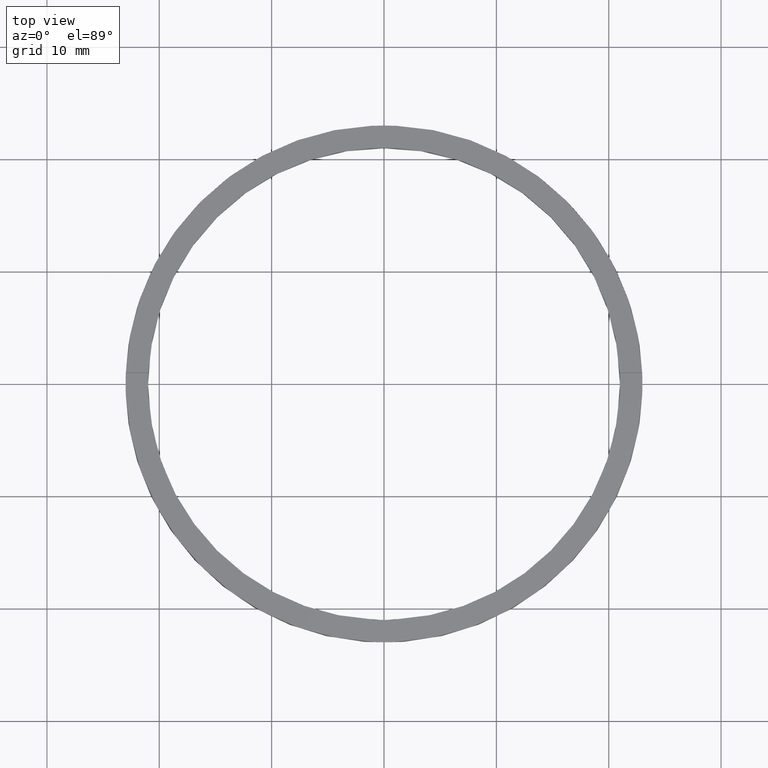
[diagram: clean part render]
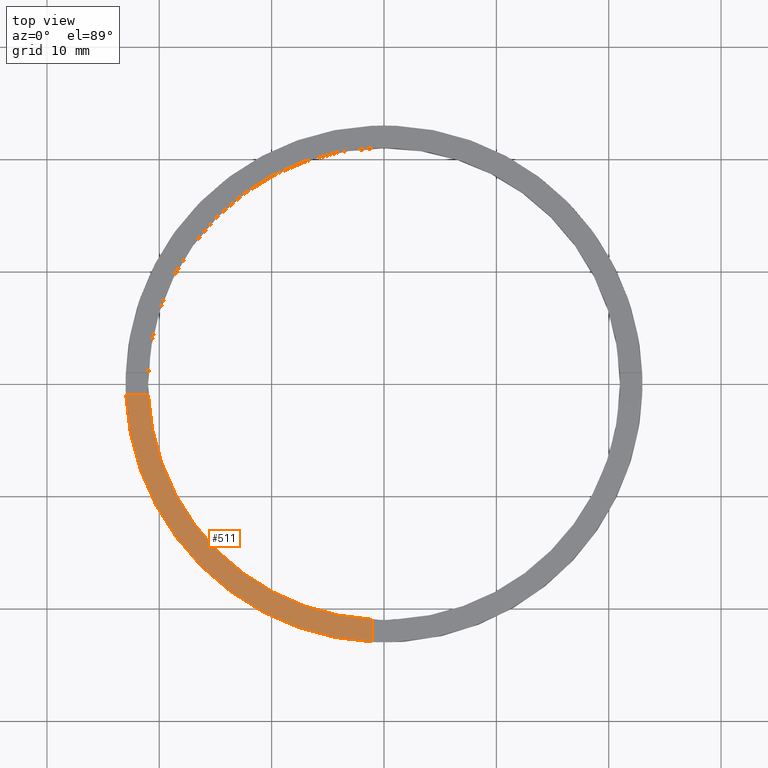
[diagram: same view with one face highlighted and labeled with its STEP entity id]
A machine part, top view. The second image highlights one B-rep face of the part: STEP entity #511.
In plain terms, the highlighted planar face has unit normal (0, 0, 1).
Its self-contained STEP definition (entity closure, byte-faithful):
#13 = VERTEX_POINT ( 'NONE', #663 ) ;
#17 = CARTESIAN_POINT ( 'NONE',  ( 0.000000000000000000, 0.000000000000000000, 2.500000000000000000 ) ) ;
#42 = VERTEX_POINT ( 'NONE', #181 ) ;
#46 = EDGE_CURVE ( 'NONE', #459, #42, #381, .T. ) ;
#57 = CARTESIAN_POINT ( 'NONE',  ( -1.000000000000161204, -20.97617696340302373, 2.500000000000000000 ) ) ;
#170 = DIRECTION ( 'NONE',  ( 1.000000000000000000, 1.734723475976807341E-16, -0.000000000000000000 ) ) ;
#181 = CARTESIAN_POINT ( 'NONE',  ( -20.97617696340303084, -1.000000000000025091, 2.500000000000000000 ) ) ;
#184 = CARTESIAN_POINT ( 'NONE',  ( 0.000000000000000000, 0.000000000000000000, 2.500000000000000000 ) ) ;
#190 = CIRCLE ( 'NONE', #610, 23.00000000000000000 ) ;
#195 = EDGE_CURVE ( 'NONE', #540, #13, #634, .T. ) ;
#197 = ORIENTED_EDGE ( 'NONE', *, *, #195, .F. ) ;
#234 = PLANE ( 'NONE',  #414 ) ;
#287 = CARTESIAN_POINT ( 'NONE',  ( 0.000000000000000000, 0.000000000000000000, 2.500000000000000000 ) ) ;
#305 = CARTESIAN_POINT ( 'NONE',  ( -13.00000000000018474, -1.000000000000023759, 2.500000000000000000 ) ) ;
#342 = DIRECTION ( 'NONE',  ( 1.517883041479706208E-16, -1.000000000000000000, 0.000000000000000000 ) ) ;
#370 = ORIENTED_EDGE ( 'NONE', *, *, #620, .F. ) ;
#376 = ORIENTED_EDGE ( 'NONE', *, *, #46, .F. ) ;
#381 = LINE ( 'NONE', #305, #385 ) ;
#385 = VECTOR ( 'NONE', #170, 1000.000000000000000 ) ;
#414 = AXIS2_PLACEMENT_3D ( 'NONE', #287, #543, #498 ) ;
#453 = DIRECTION ( 'NONE',  ( 0.000000000000000000, 0.000000000000000000, 1.000000000000000000 ) ) ;
#459 = VERTEX_POINT ( 'NONE', #723 ) ;
#498 = DIRECTION ( 'NONE',  ( 1.000000000000000000, 0.000000000000000000, -0.000000000000000000 ) ) ;
#511 = ADVANCED_FACE ( 'NONE', ( #697 ), #234, .T. ) ;
#540 = VERTEX_POINT ( 'NONE', #57 ) ;
#543 = DIRECTION ( 'NONE',  ( 0.000000000000000000, 0.000000000000000000, 1.000000000000000000 ) ) ;
#552 = CARTESIAN_POINT ( 'NONE',  ( -1.000000000000162537, -13.00000000000017941, 2.500000000000000000 ) ) ;
#557 = DIRECTION ( 'NONE',  ( 1.000000000000000000, 0.000000000000000000, 0.000000000000000000 ) ) ;
#567 = EDGE_LOOP ( 'NONE', ( #197, #370, #376, #652 ) ) ;
#610 = AXIS2_PLACEMENT_3D ( 'NONE', #17, #453, #619 ) ;
#619 = DIRECTION ( 'NONE',  ( 1.000000000000000000, 0.000000000000000000, 0.000000000000000000 ) ) ;
#620 = EDGE_CURVE ( 'NONE', #42, #540, #705, .T. ) ;
#634 = LINE ( 'NONE', #552, #658 ) ;
#652 = ORIENTED_EDGE ( 'NONE', *, *, #704, .T. ) ;
#658 = VECTOR ( 'NONE', #342, 1000.000000000000000 ) ;
#660 = AXIS2_PLACEMENT_3D ( 'NONE', #184, #738, #557 ) ;
#663 = CARTESIAN_POINT ( 'NONE',  ( -1.000000000000160982, -22.97825058615210381, 2.500000000000000000 ) ) ;
#697 = FACE_OUTER_BOUND ( 'NONE', #567, .T. ) ;
#704 = EDGE_CURVE ( 'NONE', #459, #13, #190, .T. ) ;
#705 = CIRCLE ( 'NONE', #660, 21.00000000000000000 ) ;
#723 = CARTESIAN_POINT ( 'NONE',  ( -22.97825058615211091, -1.000000000000025313, 2.500000000000000000 ) ) ;
#738 = DIRECTION ( 'NONE',  ( 0.000000000000000000, 0.000000000000000000, 1.000000000000000000 ) ) ;